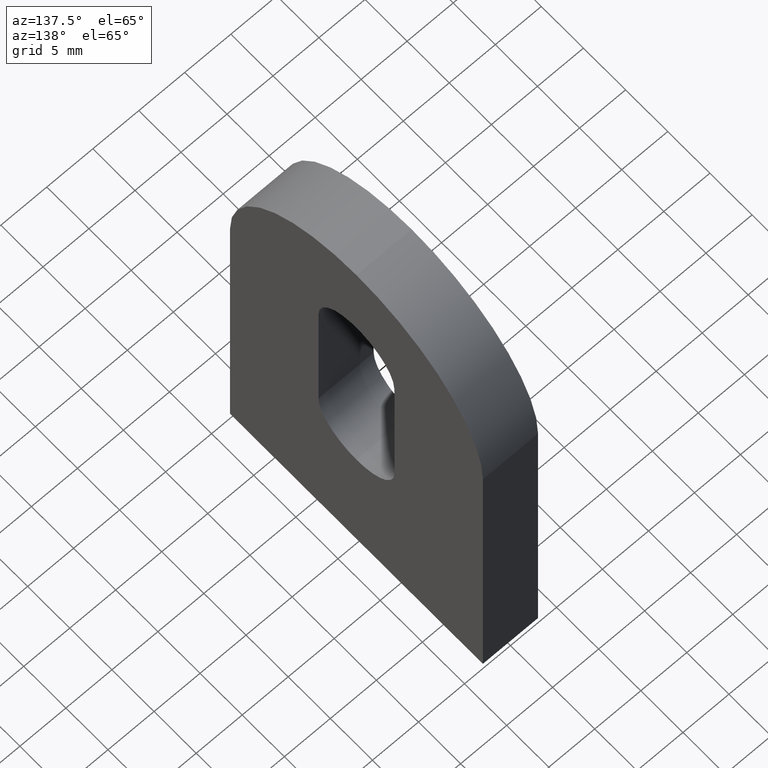
[diagram: clean part render]
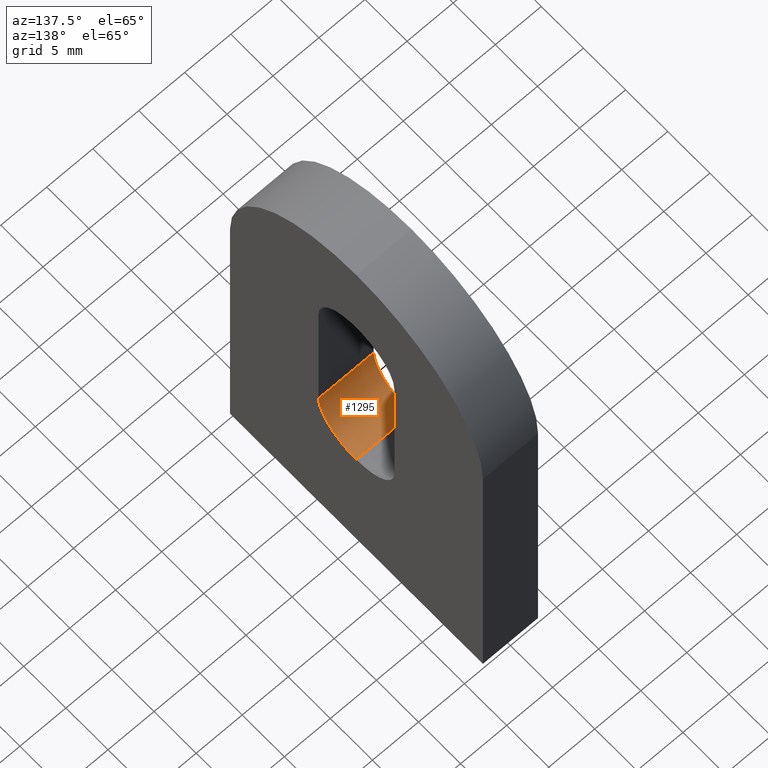
[diagram: same view with one face highlighted and labeled with its STEP entity id]
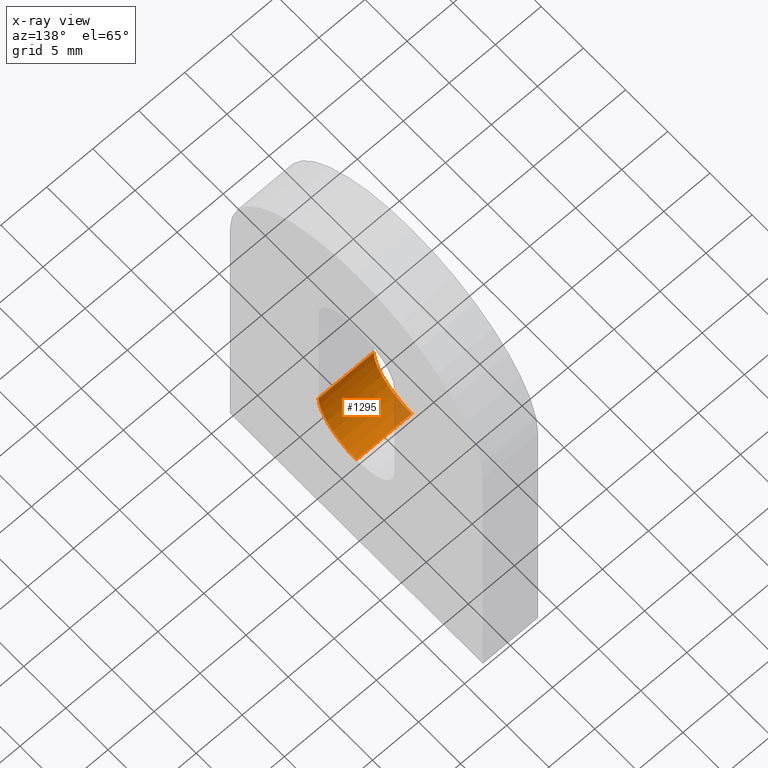
[diagram: x-ray of the same camera — body ghosted, the highlighted face saturated]
A machine part, auxiliary view. The second image highlights one B-rep face of the part: STEP entity #1295.
The next image is the same camera in x-ray: the body ghosted, the highlighted face saturated — about 6% of this face is hidden behind the body in this view.
In plain terms, the highlighted cylindrical surface (partial cylindrical patch) has radius 4.5 mm, axis along (1, -0, -0).
Its self-contained STEP definition (entity closure, byte-faithful):
#145 = DIRECTION ( 'NONE',  ( 1.000000000000000000, -0.0000000000000000000, -0.0000000000000000000 ) ) ;
#171 = AXIS2_PLACEMENT_3D ( 'NONE', #3383, #10587, #6955 ) ;
#861 = AXIS2_PLACEMENT_3D ( 'NONE', #9666, #10489, #3427 ) ;
#1267 = VERTEX_POINT ( 'NONE', #10594 ) ;
#1295 = ADVANCED_FACE ( 'NONE', ( #7494 ), #2651, .F. ) ;
#1616 = ORIENTED_EDGE ( 'NONE', *, *, #4490, .T. ) ;
#1786 = VERTEX_POINT ( 'NONE', #10156 ) ;
#2037 = DIRECTION ( 'NONE',  ( 0.0000000000000000000, 0.0000000000000000000, -1.000000000000000000 ) ) ;
#2626 = LINE ( 'NONE', #6291, #10824 ) ;
#2651 = CYLINDRICAL_SURFACE ( 'NONE', #861, 4.500000000000000900 ) ;
#2898 = ORIENTED_EDGE ( 'NONE', *, *, #10404, .F. ) ;
#3383 = CARTESIAN_POINT ( 'NONE',  ( 3.000000000000000000, 7.966394000823675000E-016, 19.49999999999999600 ) ) ;
#3427 = DIRECTION ( 'NONE',  ( 0.0000000000000000000, 0.0000000000000000000, -1.000000000000000000 ) ) ;
#3861 = EDGE_CURVE ( 'NONE', #6803, #1267, #6344, .T. ) ;
#4101 = ORIENTED_EDGE ( 'NONE', *, *, #10531, .T. ) ;
#4490 = EDGE_CURVE ( 'NONE', #6803, #9332, #2626, .T. ) ;
#4702 = DIRECTION ( 'NONE',  ( 1.000000000000000000, 0.0000000000000000000, 0.0000000000000000000 ) ) ;
#5608 = CARTESIAN_POINT ( 'NONE',  ( -3.000000000000000000, 7.966394000823675000E-016, 19.49999999999999600 ) ) ;
#5647 = LINE ( 'NONE', #7795, #5934 ) ;
#5934 = VECTOR ( 'NONE', #9466, 1000.000000000000000 ) ;
#5980 = ORIENTED_EDGE ( 'NONE', *, *, #3861, .F. ) ;
#6291 = CARTESIAN_POINT ( 'NONE',  ( -3.000000000000000000, -4.500000000000000000, 19.49999999999999600 ) ) ;
#6344 = CIRCLE ( 'NONE', #10218, 4.500000000000000900 ) ;
#6531 = CARTESIAN_POINT ( 'NONE',  ( -3.000000000000000000, -4.499999999999998200, 19.49999999999999600 ) ) ;
#6803 = VERTEX_POINT ( 'NONE', #6531 ) ;
#6955 = DIRECTION ( 'NONE',  ( 0.0000000000000000000, 0.0000000000000000000, -1.000000000000000000 ) ) ;
#7494 = FACE_OUTER_BOUND ( 'NONE', #10198, .T. ) ;
#7795 = CARTESIAN_POINT ( 'NONE',  ( -3.000000000000000000, 7.966394000823675000E-016, 14.99999999999999600 ) ) ;
#8751 = CIRCLE ( 'NONE', #171, 4.500000000000000900 ) ;
#9332 = VERTEX_POINT ( 'NONE', #10631 ) ;
#9466 = DIRECTION ( 'NONE',  ( 1.000000000000000000, -0.0000000000000000000, -0.0000000000000000000 ) ) ;
#9666 = CARTESIAN_POINT ( 'NONE',  ( -3.000000000000000000, 7.966394000823675000E-016, 19.49999999999999600 ) ) ;
#10156 = CARTESIAN_POINT ( 'NONE',  ( 3.000000000000000000, 7.966394000823675000E-016, 14.99999999999999600 ) ) ;
#10198 = EDGE_LOOP ( 'NONE', ( #2898, #5980, #1616, #4101 ) ) ;
#10218 = AXIS2_PLACEMENT_3D ( 'NONE', #5608, #4702, #2037 ) ;
#10404 = EDGE_CURVE ( 'NONE', #1267, #1786, #5647, .T. ) ;
#10489 = DIRECTION ( 'NONE',  ( 1.000000000000000000, -0.0000000000000000000, -0.0000000000000000000 ) ) ;
#10531 = EDGE_CURVE ( 'NONE', #9332, #1786, #8751, .T. ) ;
#10587 = DIRECTION ( 'NONE',  ( 1.000000000000000000, 0.0000000000000000000, 0.0000000000000000000 ) ) ;
#10594 = CARTESIAN_POINT ( 'NONE',  ( -3.000000000000000000, 7.966394000823675000E-016, 14.99999999999999600 ) ) ;
#10631 = CARTESIAN_POINT ( 'NONE',  ( 3.000000000000000000, -4.500000000000000000, 19.49999999999999600 ) ) ;
#10824 = VECTOR ( 'NONE', #145, 1000.000000000000000 ) ;